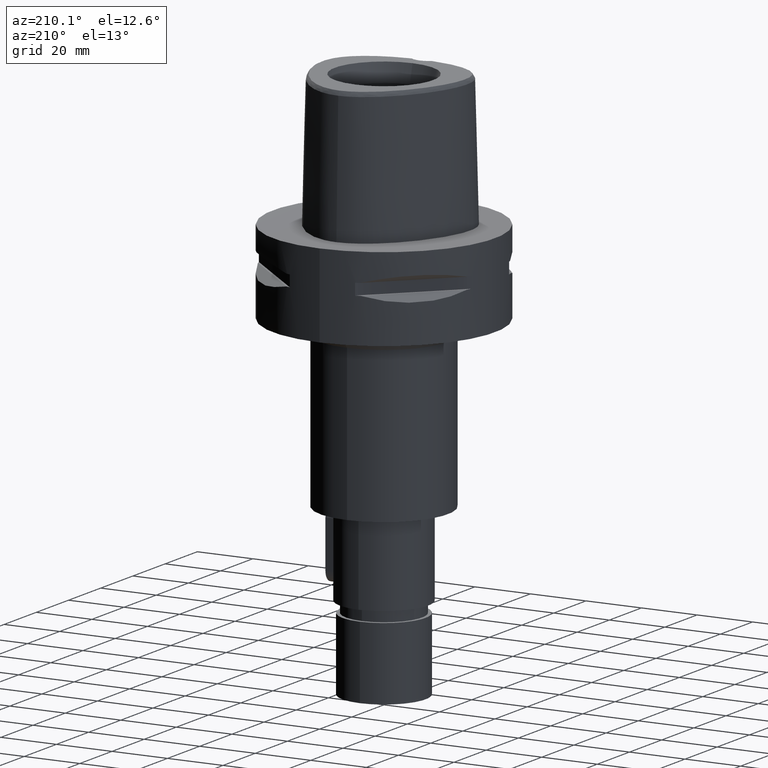
[diagram: clean part render]
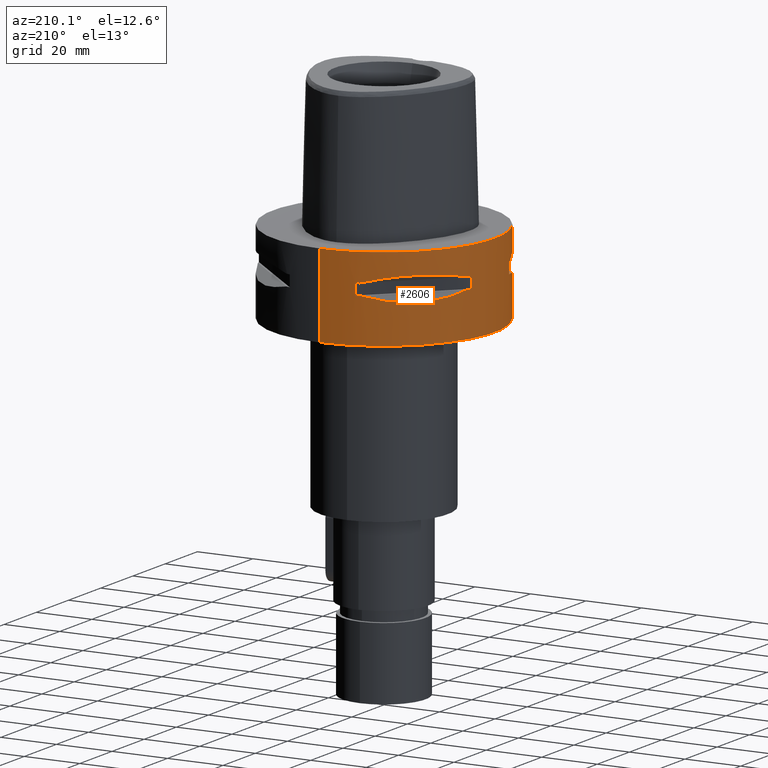
[diagram: same view with one face highlighted and labeled with its STEP entity id]
A machine part, auxiliary view. The second image highlights one B-rep face of the part: STEP entity #2606.
In plain terms, the highlighted cylindrical surface (partial cylindrical patch) has radius 40 mm, axis along (0, 0, -1).
Its self-contained STEP definition (entity closure, byte-faithful):
#288=CARTESIAN_POINT('',(0.E0,1.316495309083E-14,0.E0));
#289=DIRECTION('',(0.E0,0.E0,-1.E0));
#290=DIRECTION('',(0.E0,-1.E0,0.E0));
#291=AXIS2_PLACEMENT_3D('',#288,#289,#290);
#380=DIRECTION('',(0.E0,0.E0,-1.E0));
#381=VECTOR('',#380,3.E1);
#382=CARTESIAN_POINT('',(0.E0,4.E1,0.E0));
#383=LINE('',#382,#381);
#459=DIRECTION('',(0.E0,0.E0,-1.E0));
#460=VECTOR('',#459,3.E1);
#461=CARTESIAN_POINT('',(0.E0,-4.E1,0.E0));
#462=LINE('',#461,#460);
#466=CARTESIAN_POINT('',(-3.774622163927E1,1.323717311056E1,-9.949999999998E0));
#467=CARTESIAN_POINT('',(-3.668564587161E1,1.626143876435E1,-9.148326960987E0));
#468=CARTESIAN_POINT('',(-3.397359084062E1,2.171906657626E1,-8.027451566828E0));
#469=CARTESIAN_POINT('',(-2.850324251697E1,2.850324251697E1,-7.491083688200E0));
#470=CARTESIAN_POINT('',(-2.171906657626E1,3.397359084062E1,-8.027451566828E0));
#471=CARTESIAN_POINT('',(-1.626143876435E1,3.668564587161E1,-9.148326960987E0));
#472=CARTESIAN_POINT('',(-1.323717311056E1,3.774622163927E1,-9.949999999998E0));
#477=DIRECTION('',(0.E0,0.E0,-1.E0));
#478=VECTOR('',#477,4.1E0);
#479=CARTESIAN_POINT('',(-1.176033600281E1,3.823211342708E1,-9.95E0));
#480=LINE('',#479,#478);
#484=CARTESIAN_POINT('',(-1.323717311056E1,3.774622163927E1,-1.405E1));
#485=CARTESIAN_POINT('',(-1.626143876435E1,3.668564587161E1,-1.485167303901E1));
#486=CARTESIAN_POINT('',(-2.171906657626E1,3.397359084062E1,-1.597254843317E1));
#487=CARTESIAN_POINT('',(-2.850324251697E1,2.850324251697E1,-1.650891631180E1));
#488=CARTESIAN_POINT('',(-3.397359084062E1,2.171906657626E1,-1.597254843317E1));
#489=CARTESIAN_POINT('',(-3.668564587161E1,1.626143876435E1,-1.485167303901E1));
#490=CARTESIAN_POINT('',(-3.774622163927E1,1.323717311056E1,-1.405E1));
#495=DIRECTION('',(0.E0,0.E0,1.E0));
#496=VECTOR('',#495,4.1E0);
#497=CARTESIAN_POINT('',(-3.823211342708E1,1.176033600281E1,-1.405E1));
#498=LINE('',#497,#496);
#502=CARTESIAN_POINT('',(-1.323717311056E1,-3.774622163927E1,
-9.949999999998E0));
#503=CARTESIAN_POINT('',(-1.626143876435E1,-3.668564587161E1,
-9.148326960987E0));
#504=CARTESIAN_POINT('',(-2.171906657626E1,-3.397359084062E1,
-8.027451566828E0));
#505=CARTESIAN_POINT('',(-2.850324251697E1,-2.850324251697E1,
-7.491083688200E0));
#506=CARTESIAN_POINT('',(-3.397359084062E1,-2.171906657626E1,
-8.027451566828E0));
#507=CARTESIAN_POINT('',(-3.668564587161E1,-1.626143876435E1,
-9.148326960987E0));
#508=CARTESIAN_POINT('',(-3.774622163927E1,-1.323717311056E1,
-9.949999999998E0));
#513=DIRECTION('',(0.E0,0.E0,-1.E0));
#514=VECTOR('',#513,4.1E0);
#515=CARTESIAN_POINT('',(-3.823211342708E1,-1.176033600281E1,-9.95E0));
#516=LINE('',#515,#514);
#520=CARTESIAN_POINT('',(-3.774622163927E1,-1.323717311056E1,-1.405E1));
#521=CARTESIAN_POINT('',(-3.668564587161E1,-1.626143876435E1,
-1.485167303901E1));
#522=CARTESIAN_POINT('',(-3.397359084062E1,-2.171906657626E1,
-1.597254843317E1));
#523=CARTESIAN_POINT('',(-2.850324251697E1,-2.850324251697E1,
-1.650891631180E1));
#524=CARTESIAN_POINT('',(-2.171906657626E1,-3.397359084062E1,
-1.597254843317E1));
#525=CARTESIAN_POINT('',(-1.626143876435E1,-3.668564587161E1,
-1.485167303901E1));
#526=CARTESIAN_POINT('',(-1.323717311056E1,-3.774622163927E1,-1.405E1));
#531=DIRECTION('',(0.E0,0.E0,1.E0));
#532=VECTOR('',#531,4.1E0);
#533=CARTESIAN_POINT('',(-1.176033600281E1,-3.823211342708E1,-1.405E1));
#534=LINE('',#533,#532);
#538=CARTESIAN_POINT('',(0.E0,1.316495309083E-14,-3.E1));
#539=DIRECTION('',(0.E0,0.E0,1.E0));
#540=DIRECTION('',(0.E0,1.E0,0.E0));
#541=AXIS2_PLACEMENT_3D('',#538,#539,#540);
#908=CARTESIAN_POINT('',(0.E0,1.316495309083E-14,-9.95E0));
#909=DIRECTION('',(0.E0,0.E0,1.E0));
#910=DIRECTION('',(-9.436555409818E-1,3.309293277639E-1,0.E0));
#911=AXIS2_PLACEMENT_3D('',#908,#909,#910);
#916=CARTESIAN_POINT('',(0.E0,1.316495309083E-14,-9.95E0));
#917=DIRECTION('',(0.E0,0.E0,1.E0));
#918=DIRECTION('',(-2.940084000703E-1,9.558028356770E-1,0.E0));
#919=AXIS2_PLACEMENT_3D('',#916,#917,#918);
#938=CARTESIAN_POINT('',(0.E0,1.316495309083E-14,-1.405E1));
#939=DIRECTION('',(0.E0,0.E0,-1.E0));
#940=DIRECTION('',(-9.558028356770E-1,2.940084000703E-1,0.E0));
#941=AXIS2_PLACEMENT_3D('',#938,#939,#940);
#946=CARTESIAN_POINT('',(0.E0,1.316495309083E-14,-1.405E1));
#947=DIRECTION('',(0.E0,0.E0,-1.E0));
#948=DIRECTION('',(-3.309293277639E-1,9.436555409818E-1,0.E0));
#949=AXIS2_PLACEMENT_3D('',#946,#947,#948);
#968=CARTESIAN_POINT('',(0.E0,1.316495309083E-14,-9.95E0));
#969=DIRECTION('',(0.E0,0.E0,1.E0));
#970=DIRECTION('',(-3.309293277639E-1,-9.436555409818E-1,0.E0));
#971=AXIS2_PLACEMENT_3D('',#968,#969,#970);
#976=CARTESIAN_POINT('',(0.E0,1.316495309083E-14,-9.95E0));
#977=DIRECTION('',(0.E0,0.E0,1.E0));
#978=DIRECTION('',(-9.558028356770E-1,-2.940084000703E-1,0.E0));
#979=AXIS2_PLACEMENT_3D('',#976,#977,#978);
#998=CARTESIAN_POINT('',(0.E0,1.316495309083E-14,-1.405E1));
#999=DIRECTION('',(0.E0,0.E0,-1.E0));
#1000=DIRECTION('',(-2.940084000703E-1,-9.558028356770E-1,0.E0));
#1001=AXIS2_PLACEMENT_3D('',#998,#999,#1000);
#1006=CARTESIAN_POINT('',(0.E0,1.316495309083E-14,-1.405E1));
#1007=DIRECTION('',(0.E0,0.E0,-1.E0));
#1008=DIRECTION('',(-9.436555409818E-1,-3.309293277639E-1,0.E0));
#1009=AXIS2_PLACEMENT_3D('',#1006,#1007,#1008);
#1596=CARTESIAN_POINT('',(0.E0,4.E1,0.E0));
#1597=CARTESIAN_POINT('',(0.E0,-4.E1,0.E0));
#1598=VERTEX_POINT('',#1596);
#1599=VERTEX_POINT('',#1597);
#1600=CARTESIAN_POINT('',(0.E0,4.E1,-3.E1));
#1601=VERTEX_POINT('',#1600);
#1602=CARTESIAN_POINT('',(0.E0,-4.E1,-3.E1));
#1603=VERTEX_POINT('',#1602);
#1630=VERTEX_POINT('',#466);
#1631=VERTEX_POINT('',#472);
#1632=CARTESIAN_POINT('',(-1.176033600281E1,3.823211342708E1,-9.95E0));
#1633=VERTEX_POINT('',#1632);
#1634=CARTESIAN_POINT('',(-1.176033600281E1,3.823211342708E1,-1.405E1));
#1635=VERTEX_POINT('',#1634);
#1636=CARTESIAN_POINT('',(-1.323717311056E1,3.774622163927E1,-1.405E1));
#1637=VERTEX_POINT('',#1636);
#1638=VERTEX_POINT('',#490);
#1639=CARTESIAN_POINT('',(-3.823211342708E1,1.176033600281E1,-1.405E1));
#1640=VERTEX_POINT('',#1639);
#1641=CARTESIAN_POINT('',(-3.823211342708E1,1.176033600281E1,-9.95E0));
#1642=VERTEX_POINT('',#1641);
#1643=VERTEX_POINT('',#502);
#1644=VERTEX_POINT('',#508);
#1645=CARTESIAN_POINT('',(-3.823211342708E1,-1.176033600281E1,-9.95E0));
#1646=VERTEX_POINT('',#1645);
#1647=CARTESIAN_POINT('',(-3.823211342708E1,-1.176033600281E1,-1.405E1));
#1648=VERTEX_POINT('',#1647);
#1649=CARTESIAN_POINT('',(-3.774622163927E1,-1.323717311056E1,-1.405E1));
#1650=VERTEX_POINT('',#1649);
#1651=VERTEX_POINT('',#526);
#1652=CARTESIAN_POINT('',(-1.176033600281E1,-3.823211342708E1,-1.405E1));
#1653=VERTEX_POINT('',#1652);
#1654=CARTESIAN_POINT('',(-1.176033600281E1,-3.823211342708E1,-9.95E0));
#1655=VERTEX_POINT('',#1654);
#2558=CARTESIAN_POINT('',(0.E0,1.316495309083E-14,7.5E0));
#2559=DIRECTION('',(0.E0,0.E0,-1.E0));
#2560=DIRECTION('',(0.E0,-1.E0,0.E0));
#2561=AXIS2_PLACEMENT_3D('',#2558,#2559,#2560);
#2562=CYLINDRICAL_SURFACE('',#2561,4.E1);
#2563=ORIENTED_EDGE('',*,*,#2512,.F.);
#2564=ORIENTED_EDGE('',*,*,#2497,.F.);
#2565=ORIENTED_EDGE('',*,*,#2516,.T.);
#2567=ORIENTED_EDGE('',*,*,#2566,.F.);
#2568=EDGE_LOOP('',(#2563,#2564,#2565,#2567));
#2569=FACE_OUTER_BOUND('',#2568,.F.);
#2571=ORIENTED_EDGE('',*,*,#2570,.T.);
#2573=ORIENTED_EDGE('',*,*,#2572,.F.);
#2575=ORIENTED_EDGE('',*,*,#2574,.T.);
#2577=ORIENTED_EDGE('',*,*,#2576,.F.);
#2579=ORIENTED_EDGE('',*,*,#2578,.T.);
#2581=ORIENTED_EDGE('',*,*,#2580,.F.);
#2583=ORIENTED_EDGE('',*,*,#2582,.T.);
#2585=ORIENTED_EDGE('',*,*,#2584,.F.);
#2586=EDGE_LOOP('',(#2571,#2573,#2575,#2577,#2579,#2581,#2583,#2585));
#2587=FACE_BOUND('',#2586,.F.);
#2589=ORIENTED_EDGE('',*,*,#2588,.T.);
#2591=ORIENTED_EDGE('',*,*,#2590,.F.);
#2593=ORIENTED_EDGE('',*,*,#2592,.T.);
#2595=ORIENTED_EDGE('',*,*,#2594,.F.);
#2597=ORIENTED_EDGE('',*,*,#2596,.T.);
#2599=ORIENTED_EDGE('',*,*,#2598,.F.);
#2601=ORIENTED_EDGE('',*,*,#2600,.T.);
#2603=ORIENTED_EDGE('',*,*,#2602,.F.);
#2604=EDGE_LOOP('',(#2589,#2591,#2593,#2595,#2597,#2599,#2601,#2603));
#2605=FACE_BOUND('',#2604,.F.);
#292=CIRCLE('',#291,4.E1);
#473=B_SPLINE_CURVE_WITH_KNOTS('',3,(#466,#467,#468,#469,#470,#471,#472),
.UNSPECIFIED.,.F.,.F.,(4,1,1,1,4),(0.E0,2.5E-1,5.E-1,7.5E-1,1.E0),
.UNSPECIFIED.);
#491=B_SPLINE_CURVE_WITH_KNOTS('',3,(#484,#485,#486,#487,#488,#489,#490),
.UNSPECIFIED.,.F.,.F.,(4,1,1,1,4),(0.E0,2.5E-1,5.E-1,7.5E-1,1.E0),
.UNSPECIFIED.);
#509=B_SPLINE_CURVE_WITH_KNOTS('',3,(#502,#503,#504,#505,#506,#507,#508),
.UNSPECIFIED.,.F.,.F.,(4,1,1,1,4),(0.E0,2.5E-1,5.E-1,7.5E-1,1.E0),
.UNSPECIFIED.);
#527=B_SPLINE_CURVE_WITH_KNOTS('',3,(#520,#521,#522,#523,#524,#525,#526),
.UNSPECIFIED.,.F.,.F.,(4,1,1,1,4),(0.E0,2.5E-1,5.E-1,7.5E-1,1.E0),
.UNSPECIFIED.);
#542=CIRCLE('',#541,4.E1);
#912=CIRCLE('',#911,4.E1);
#920=CIRCLE('',#919,4.E1);
#942=CIRCLE('',#941,4.E1);
#950=CIRCLE('',#949,4.E1);
#972=CIRCLE('',#971,4.E1);
#980=CIRCLE('',#979,4.E1);
#1002=CIRCLE('',#1001,4.E1);
#1010=CIRCLE('',#1009,4.E1);
#2497=EDGE_CURVE('',#1599,#1598,#292,.T.);
#2512=EDGE_CURVE('',#1598,#1601,#383,.T.);
#2516=EDGE_CURVE('',#1599,#1603,#462,.T.);
#2566=EDGE_CURVE('',#1601,#1603,#542,.T.);
#2570=EDGE_CURVE('',#1630,#1631,#473,.T.);
#2572=EDGE_CURVE('',#1633,#1631,#920,.T.);
#2574=EDGE_CURVE('',#1633,#1635,#480,.T.);
#2576=EDGE_CURVE('',#1637,#1635,#950,.T.);
#2578=EDGE_CURVE('',#1637,#1638,#491,.T.);
#2580=EDGE_CURVE('',#1640,#1638,#942,.T.);
#2582=EDGE_CURVE('',#1640,#1642,#498,.T.);
#2584=EDGE_CURVE('',#1630,#1642,#912,.T.);
#2588=EDGE_CURVE('',#1643,#1644,#509,.T.);
#2590=EDGE_CURVE('',#1646,#1644,#980,.T.);
#2592=EDGE_CURVE('',#1646,#1648,#516,.T.);
#2594=EDGE_CURVE('',#1650,#1648,#1010,.T.);
#2596=EDGE_CURVE('',#1650,#1651,#527,.T.);
#2598=EDGE_CURVE('',#1653,#1651,#1002,.T.);
#2600=EDGE_CURVE('',#1653,#1655,#534,.T.);
#2602=EDGE_CURVE('',#1643,#1655,#972,.T.);
#2606=ADVANCED_FACE('',(#2569,#2587,#2605),#2562,.T.);